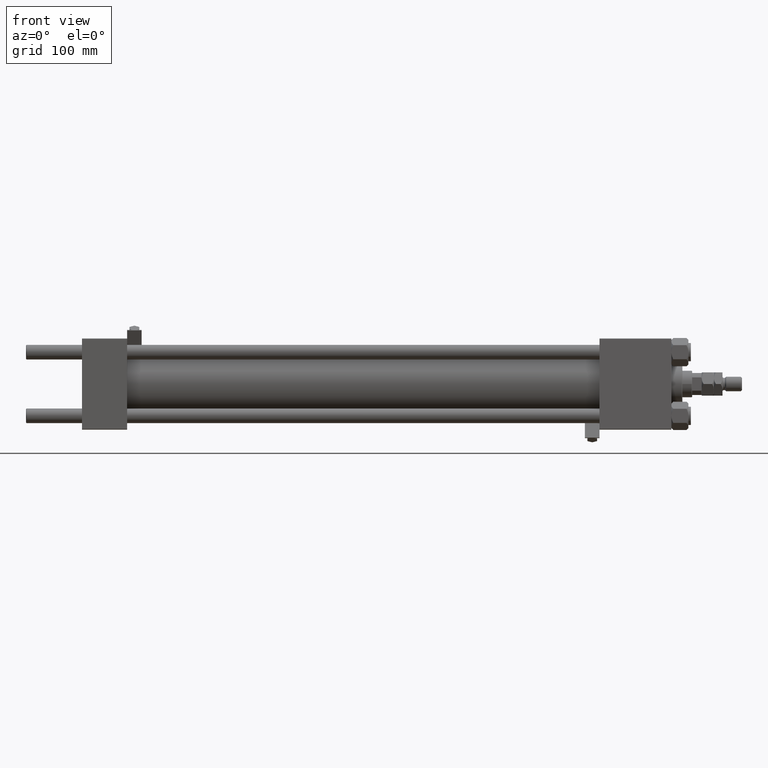
[diagram: clean part render]
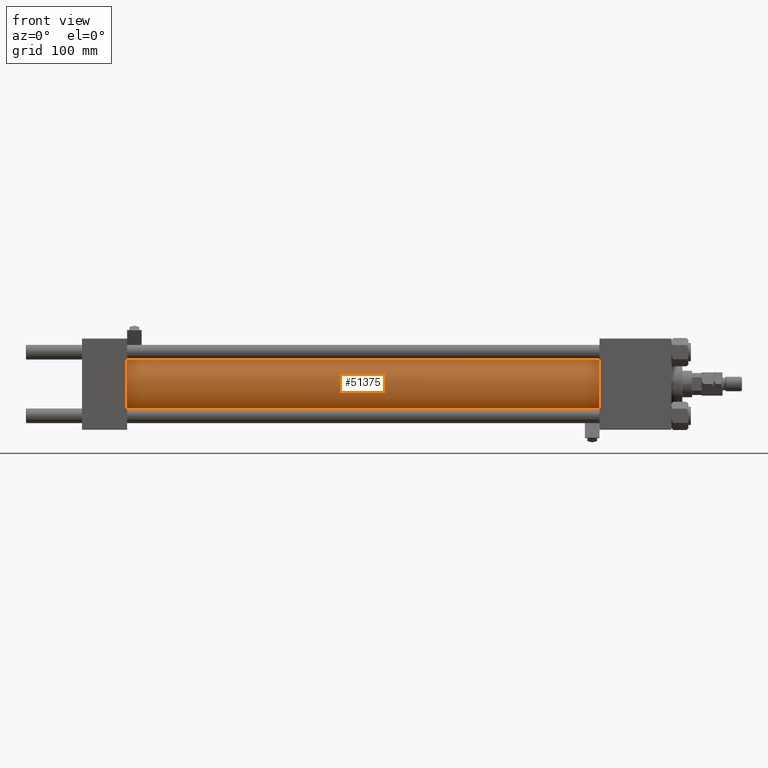
[diagram: same view with one face highlighted and labeled with its STEP entity id]
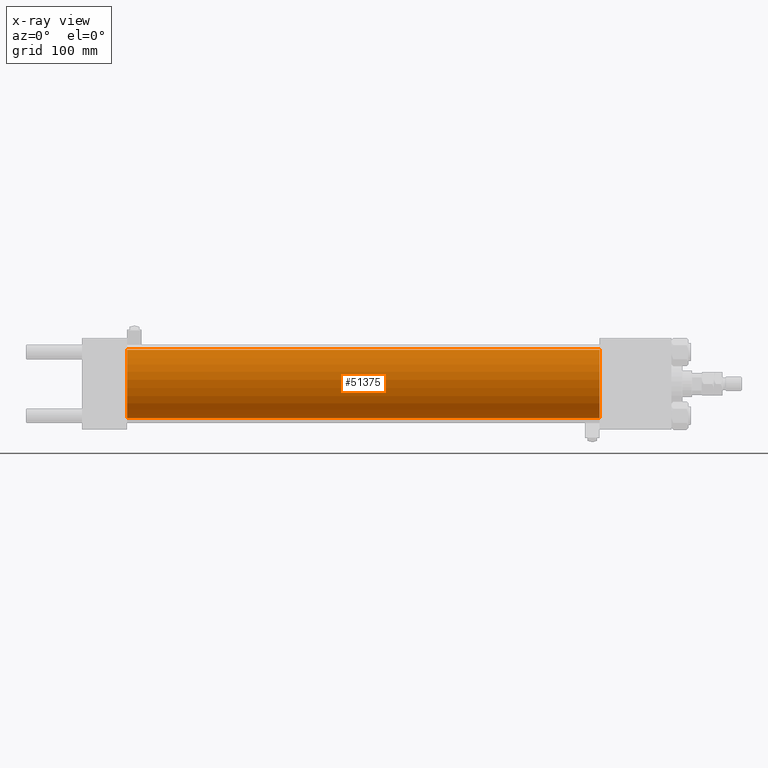
[diagram: x-ray of the same camera — body ghosted, the highlighted face saturated]
A machine part, front view. The second image highlights one B-rep face of the part: STEP entity #51375.
The next image is the same camera in x-ray: the body ghosted, the highlighted face saturated — about 0% of this face is hidden behind the body in this view.
In plain terms, the highlighted cylindrical surface (edge-blend (fillet) strip) has radius 28 mm, axis along (-1, -0, -0).
Its self-contained STEP definition (entity closure, byte-faithful):
#286 = ORIENTED_EDGE ( 'NONE', *, *, #30393, .F. ) ;
#905 = DIRECTION ( 'NONE',  ( -1.000000000000000000, -0.000000000000000000, -0.000000000000000000 ) ) ;
#1750 = VERTEX_POINT ( 'NONE', #45725 ) ;
#2165 = ORIENTED_EDGE ( 'NONE', *, *, #3748, .T. ) ;
#3532 = VERTEX_POINT ( 'NONE', #47578 ) ;
#3748 = EDGE_CURVE ( 'NONE', #1750, #33884, #31981, .T. ) ;
#6799 = EDGE_LOOP ( 'NONE', ( #286, #39206, #2165, #16263 ) ) ;
#9468 = DIRECTION ( 'NONE',  ( 1.000000000000000000, -0.000000000000000000, 0.000000000000000000 ) ) ;
#9997 = CARTESIAN_POINT ( 'NONE',  ( 425.0000000000000000, 3.429011037612588487E-15, -28.00000000000000000 ) ) ;
#12163 = DIRECTION ( 'NONE',  ( 1.000000000000000000, 0.000000000000000000, 0.000000000000000000 ) ) ;
#13094 = FACE_OUTER_BOUND ( 'NONE', #6799, .T. ) ;
#15170 = DIRECTION ( 'NONE',  ( -1.000000000000000000, -0.000000000000000000, -0.000000000000000000 ) ) ;
#15585 = CARTESIAN_POINT ( 'NONE',  ( 425.0000000000000000, 0.000000000000000000, 28.00000000000000000 ) ) ;
#15887 = CIRCLE ( 'NONE', #34468, 28.00000000000000000 ) ;
#16263 = ORIENTED_EDGE ( 'NONE', *, *, #24049, .T. ) ;
#18379 = AXIS2_PLACEMENT_3D ( 'NONE', #51679, #9468, #25868 ) ;
#19464 = CARTESIAN_POINT ( 'NONE',  ( 36.99999999999997868, 0.000000000000000000, 28.00000000000000000 ) ) ;
#19580 = CARTESIAN_POINT ( 'NONE',  ( 425.0000000000000000, 0.000000000000000000, 0.000000000000000000 ) ) ;
#24049 = EDGE_CURVE ( 'NONE', #33884, #3532, #41187, .T. ) ;
#24084 = VERTEX_POINT ( 'NONE', #9997 ) ;
#25868 = DIRECTION ( 'NONE',  ( 0.000000000000000000, 0.000000000000000000, 1.000000000000000000 ) ) ;
#28524 = EDGE_CURVE ( 'NONE', #1750, #24084, #15887, .T. ) ;
#28960 = CARTESIAN_POINT ( 'NONE',  ( 425.0000000000000000, 0.000000000000000000, 0.000000000000000000 ) ) ;
#29209 = CYLINDRICAL_SURFACE ( 'NONE', #29983, 28.00000000000000000 ) ;
#29983 = AXIS2_PLACEMENT_3D ( 'NONE', #28960, #905, #33987 ) ;
#30393 = EDGE_CURVE ( 'NONE', #24084, #3532, #35017, .T. ) ;
#31714 = DIRECTION ( 'NONE',  ( -1.000000000000000000, -0.000000000000000000, -0.000000000000000000 ) ) ;
#31981 = LINE ( 'NONE', #15585, #47156 ) ;
#33884 = VERTEX_POINT ( 'NONE', #19464 ) ;
#33987 = DIRECTION ( 'NONE',  ( 0.000000000000000000, 0.000000000000000000, 1.000000000000000000 ) ) ;
#34468 = AXIS2_PLACEMENT_3D ( 'NONE', #19580, #12163, #44446 ) ;
#35017 = LINE ( 'NONE', #48002, #51489 ) ;
#39206 = ORIENTED_EDGE ( 'NONE', *, *, #28524, .F. ) ;
#41187 = CIRCLE ( 'NONE', #18379, 28.00000000000000000 ) ;
#44446 = DIRECTION ( 'NONE',  ( 0.000000000000000000, 0.000000000000000000, -1.000000000000000000 ) ) ;
#45725 = CARTESIAN_POINT ( 'NONE',  ( 425.0000000000000000, 0.000000000000000000, 28.00000000000000000 ) ) ;
#47156 = VECTOR ( 'NONE', #31714, 1000.000000000000000 ) ;
#47578 = CARTESIAN_POINT ( 'NONE',  ( 36.99999999999997868, 3.429011037612588487E-15, -28.00000000000000000 ) ) ;
#48002 = CARTESIAN_POINT ( 'NONE',  ( 425.0000000000000000, 3.429011037612588487E-15, -28.00000000000000000 ) ) ;
#51375 = ADVANCED_FACE ( 'NONE', ( #13094 ), #29209, .T. ) ;
#51489 = VECTOR ( 'NONE', #15170, 1000.000000000000000 ) ;
#51679 = CARTESIAN_POINT ( 'NONE',  ( 36.99999999999997868, 0.000000000000000000, 0.000000000000000000 ) ) ;